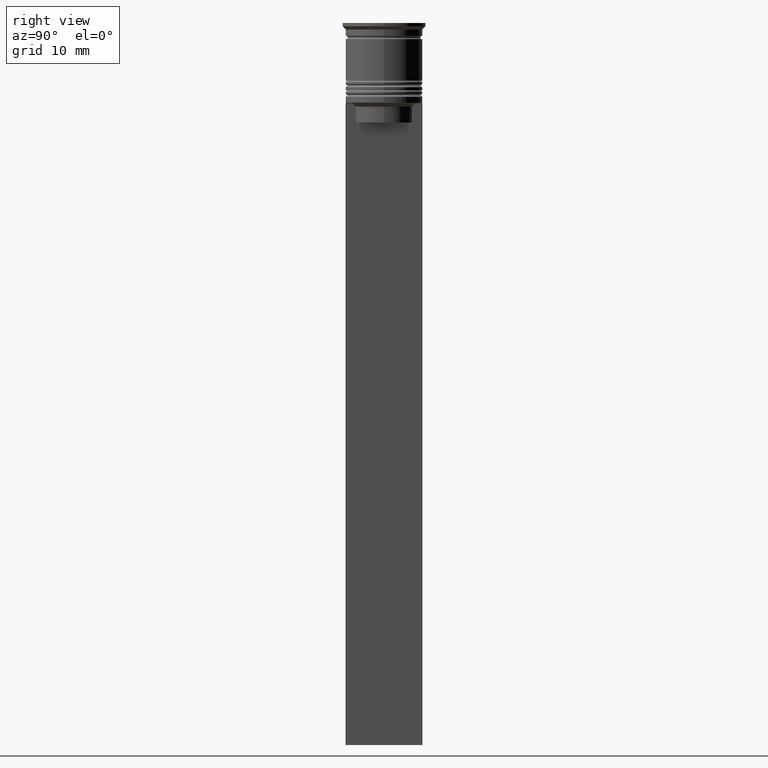
[diagram: clean part render]
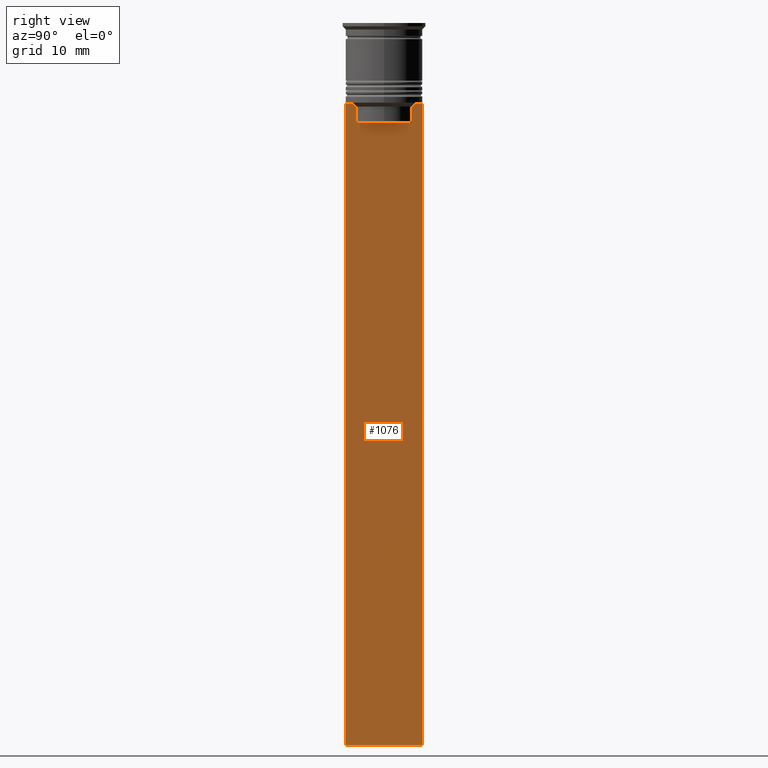
[diagram: same view with one face highlighted and labeled with its STEP entity id]
A machine part, right view. The second image highlights one B-rep face of the part: STEP entity #1076.
In plain terms, the highlighted planar face has unit normal (-1, 0, 0).
Its self-contained STEP definition (entity closure, byte-faithful):
#10 = CARTESIAN_POINT ( 'NONE',  ( 0.5000000000000002220, -6.000000000000000000, -12.50000000000000000 ) ) ;
#16 = DIRECTION ( 'NONE',  ( -1.000000000000000000, 0.000000000000000000, 0.000000000000000000 ) ) ;
#25 = CARTESIAN_POINT ( 'NONE',  ( 0.5000000000000002220, -6.000000000000000000, -12.50000000000000000 ) ) ;
#80 = CARTESIAN_POINT ( 'NONE',  ( 0.5000000000000002220, -6.000000000000000000, -12.50000000000000000 ) ) ;
#88 = DIRECTION ( 'NONE',  ( 0.000000000000000000, 0.000000000000000000, -1.000000000000000000 ) ) ;
#103 = ORIENTED_EDGE ( 'NONE', *, *, #1709, .T. ) ;
#187 = DIRECTION ( 'NONE',  ( 0.000000000000000000, 0.000000000000000000, -1.000000000000000000 ) ) ;
#190 = VERTEX_POINT ( 'NONE', #80 ) ;
#199 = CARTESIAN_POINT ( 'NONE',  ( 0.5000000000000002220, -5.878775382679627626, -12.50000000000000000 ) ) ;
#255 = VERTEX_POINT ( 'NONE', #2113 ) ;
#291 = EDGE_CURVE ( 'NONE', #2176, #1561, #2471, .T. ) ;
#293 = ORIENTED_EDGE ( 'NONE', *, *, #971, .T. ) ;
#385 = CARTESIAN_POINT ( 'NONE',  ( 0.5000000000000002220, -6.000000000000000000, -12.50000000000000000 ) ) ;
#398 = DIRECTION ( 'NONE',  ( 0.000000000000000000, 0.000000000000000000, 1.000000000000000000 ) ) ;
#408 = CARTESIAN_POINT ( 'NONE',  ( 0.5000000000000002220, 4.371498598878878816, -15.50000000000000000 ) ) ;
#424 = LINE ( 'NONE', #1051, #1982 ) ;
#430 = CARTESIAN_POINT ( 'NONE',  ( 0.5000000000000002220, 4.706831415367288329, -12.66671683478479160 ) ) ;
#473 = CARTESIAN_POINT ( 'NONE',  ( 0.5000000000000002220, -4.874423042781576676, -12.50000000000000000 ) ) ;
#518 = VERTEX_POINT ( 'NONE', #1867 ) ;
#555 = CARTESIAN_POINT ( 'NONE',  ( 0.5000000000000002220, 6.000000000000000888, -0.4584054212077061097 ) ) ;
#567 = CARTESIAN_POINT ( 'NONE',  ( 0.5000000000000002220, -6.000000000000000000, -112.5000000000000000 ) ) ;
#587 = VECTOR ( 'NONE', #1932, 1000.000000000000000 ) ;
#593 = CARTESIAN_POINT ( 'NONE',  ( 0.5000000000000002220, 4.399999999999999467, -15.50000000000000000 ) ) ;
#601 = LINE ( 'NONE', #25, #587 ) ;
#631 = CARTESIAN_POINT ( 'NONE',  ( 0.5000000000000002220, 4.539195634199896467, -12.83338923751318816 ) ) ;
#632 = PLANE ( 'NONE',  #2061 ) ;
#644 = CARTESIAN_POINT ( 'NONE',  ( 0.5000000000000002220, 4.874423042781576676, -12.50000000000000000 ) ) ;
#753 = DIRECTION ( 'NONE',  ( 0.000000000000000000, -1.000000000000000000, 0.000000000000000000 ) ) ;
#780 = LINE ( 'NONE', #10, #2108 ) ;
#781 = DIRECTION ( 'NONE',  ( 0.000000000000000000, -1.000000000000000000, 0.000000000000000000 ) ) ;
#784 = CARTESIAN_POINT ( 'NONE',  ( 0.5000000000000002220, -4.371498598878878816, 0.000000000000000000 ) ) ;
#798 = CARTESIAN_POINT ( 'NONE',  ( 0.5000000000000002220, -4.706831372970962768, -12.66671687695981774 ) ) ;
#837 = EDGE_CURVE ( 'NONE', #1636, #2370, #2376, .T. ) ;
#865 = CARTESIAN_POINT ( 'NONE',  ( 0.5000000000000002220, 6.000000000000000888, -112.5000000000000000 ) ) ;
#953 = LINE ( 'NONE', #2239, #1431 ) ;
#971 = EDGE_CURVE ( 'NONE', #1688, #1561, #997, .T. ) ;
#997 = LINE ( 'NONE', #2320, #2025 ) ;
#1012 = CARTESIAN_POINT ( 'NONE',  ( 0.5000000000000002220, -6.000000000000000000, -0.4584054212077061097 ) ) ;
#1016 = CARTESIAN_POINT ( 'NONE',  ( 0.5000000000000002220, -4.371498598878878816, -13.00000000000000178 ) ) ;
#1043 = VERTEX_POINT ( 'NONE', #2309 ) ;
#1051 = CARTESIAN_POINT ( 'NONE',  ( 0.5000000000000002220, -6.000000000000000000, -0.4584054212077061097 ) ) ;
#1073 = EDGE_CURVE ( 'NONE', #1043, #1636, #1732, .T. ) ;
#1076 = ADVANCED_FACE ( 'NONE', ( #2120 ), #632, .F. ) ;
#1124 = DIRECTION ( 'NONE',  ( 0.000000000000000000, -1.000000000000000000, 0.000000000000000000 ) ) ;
#1128 = EDGE_CURVE ( 'NONE', #255, #1357, #2440, .T. ) ;
#1179 = VECTOR ( 'NONE', #1849, 1000.000000000000000 ) ;
#1200 = CARTESIAN_POINT ( 'NONE',  ( 0.5000000000000002220, -4.874423042781576676, -12.50000000000000000 ) ) ;
#1210 = ORIENTED_EDGE ( 'NONE', *, *, #1485, .T. ) ;
#1227 = VECTOR ( 'NONE', #781, 1000.000000000000000 ) ;
#1268 = VECTOR ( 'NONE', #1124, 1000.000000000000000 ) ;
#1270 = CARTESIAN_POINT ( 'NONE',  ( 0.5000000000000002220, 4.371498598878878816, 0.000000000000000000 ) ) ;
#1324 = CARTESIAN_POINT ( 'NONE',  ( 0.5000000000000002220, 4.874423042781576676, -12.50000000000000000 ) ) ;
#1357 = VERTEX_POINT ( 'NONE', #408 ) ;
#1377 = CARTESIAN_POINT ( 'NONE',  ( 0.5000000000000002220, -4.539195586926423331, -12.83338928448044314 ) ) ;
#1389 = CARTESIAN_POINT ( 'NONE',  ( 0.5000000000000002220, 4.371498598878878816, -13.00000000000000178 ) ) ;
#1410 = EDGE_LOOP ( 'NONE', ( #2410, #1210, #2306, #2238, #1641, #1486, #103, #1894, #1625, #293, #1706, #2400 ) ) ;
#1431 = VECTOR ( 'NONE', #753, 1000.000000000000000 ) ;
#1456 = B_SPLINE_CURVE_WITH_KNOTS ( 'NONE', 3,
 ( #644, #430, #631, #1389 ),
 .UNSPECIFIED., .F., .F.,
 ( 4, 4 ),
 ( 0.008336552452178421987, 0.009045730124312839626 ),
 .UNSPECIFIED. ) ;
#1485 = EDGE_CURVE ( 'NONE', #1785, #255, #1456, .T. ) ;
#1486 = ORIENTED_EDGE ( 'NONE', *, *, #837, .T. ) ;
#1561 = VERTEX_POINT ( 'NONE', #865 ) ;
#1625 = ORIENTED_EDGE ( 'NONE', *, *, #1964, .T. ) ;
#1636 = VERTEX_POINT ( 'NONE', #2019 ) ;
#1641 = ORIENTED_EDGE ( 'NONE', *, *, #1073, .T. ) ;
#1679 = CARTESIAN_POINT ( 'NONE',  ( 0.5000000000000002220, 6.000000000000000888, -12.50000000000000000 ) ) ;
#1688 = VERTEX_POINT ( 'NONE', #567 ) ;
#1706 = ORIENTED_EDGE ( 'NONE', *, *, #291, .F. ) ;
#1709 = EDGE_CURVE ( 'NONE', #2370, #1756, #2105, .T. ) ;
#1732 = LINE ( 'NONE', #784, #1936 ) ;
#1756 = VERTEX_POINT ( 'NONE', #199 ) ;
#1785 = VERTEX_POINT ( 'NONE', #1324 ) ;
#1832 = EDGE_CURVE ( 'NONE', #1357, #1043, #1919, .T. ) ;
#1849 = DIRECTION ( 'NONE',  ( 0.000000000000000000, 0.000000000000000000, -1.000000000000000000 ) ) ;
#1867 = CARTESIAN_POINT ( 'NONE',  ( 0.5000000000000002220, 5.878775382679627626, -12.50000000000000000 ) ) ;
#1894 = ORIENTED_EDGE ( 'NONE', *, *, #2358, .T. ) ;
#1919 = LINE ( 'NONE', #593, #1227 ) ;
#1932 = DIRECTION ( 'NONE',  ( 0.000000000000000000, -1.000000000000000000, 0.000000000000000000 ) ) ;
#1936 = VECTOR ( 'NONE', #1952, 1000.000000000000000 ) ;
#1952 = DIRECTION ( 'NONE',  ( -0.000000000000000000, -0.000000000000000000, 1.000000000000000000 ) ) ;
#1964 = EDGE_CURVE ( 'NONE', #190, #1688, #424, .T. ) ;
#1982 = VECTOR ( 'NONE', #88, 1000.000000000000000 ) ;
#2019 = CARTESIAN_POINT ( 'NONE',  ( 0.5000000000000002220, -4.371498598878878816, -13.00000000000000178 ) ) ;
#2025 = VECTOR ( 'NONE', #2347, 1000.000000000000000 ) ;
#2061 = AXIS2_PLACEMENT_3D ( 'NONE', #1012, #16, #398 ) ;
#2105 = LINE ( 'NONE', #385, #1268 ) ;
#2108 = VECTOR ( 'NONE', #2326, 1000.000000000000000 ) ;
#2113 = CARTESIAN_POINT ( 'NONE',  ( 0.5000000000000002220, 4.371498598878878816, -13.00000000000000178 ) ) ;
#2120 = FACE_OUTER_BOUND ( 'NONE', #1410, .T. ) ;
#2176 = VERTEX_POINT ( 'NONE', #1679 ) ;
#2204 = EDGE_CURVE ( 'NONE', #518, #1785, #953, .T. ) ;
#2217 = VECTOR ( 'NONE', #187, 1000.000000000000000 ) ;
#2238 = ORIENTED_EDGE ( 'NONE', *, *, #1832, .T. ) ;
#2239 = CARTESIAN_POINT ( 'NONE',  ( 0.5000000000000002220, -6.000000000000000000, -12.50000000000000000 ) ) ;
#2279 = EDGE_CURVE ( 'NONE', #2176, #518, #780, .T. ) ;
#2306 = ORIENTED_EDGE ( 'NONE', *, *, #1128, .T. ) ;
#2309 = CARTESIAN_POINT ( 'NONE',  ( 0.5000000000000002220, -4.371498598878878816, -15.50000000000000000 ) ) ;
#2320 = CARTESIAN_POINT ( 'NONE',  ( 0.5000000000000002220, -6.000000000000000000, -112.5000000000000000 ) ) ;
#2326 = DIRECTION ( 'NONE',  ( 0.000000000000000000, -1.000000000000000000, 0.000000000000000000 ) ) ;
#2347 = DIRECTION ( 'NONE',  ( 0.000000000000000000, 1.000000000000000000, 0.000000000000000000 ) ) ;
#2358 = EDGE_CURVE ( 'NONE', #1756, #190, #601, .T. ) ;
#2370 = VERTEX_POINT ( 'NONE', #1200 ) ;
#2376 = B_SPLINE_CURVE_WITH_KNOTS ( 'NONE', 3,
 ( #1016, #1377, #798, #473 ),
 .UNSPECIFIED., .F., .F.,
 ( 4, 4 ),
 ( 0.02089901220910808308, 0.02161421017310286019 ),
 .UNSPECIFIED. ) ;
#2400 = ORIENTED_EDGE ( 'NONE', *, *, #2279, .T. ) ;
#2410 = ORIENTED_EDGE ( 'NONE', *, *, #2204, .T. ) ;
#2440 = LINE ( 'NONE', #1270, #1179 ) ;
#2471 = LINE ( 'NONE', #555, #2217 ) ;